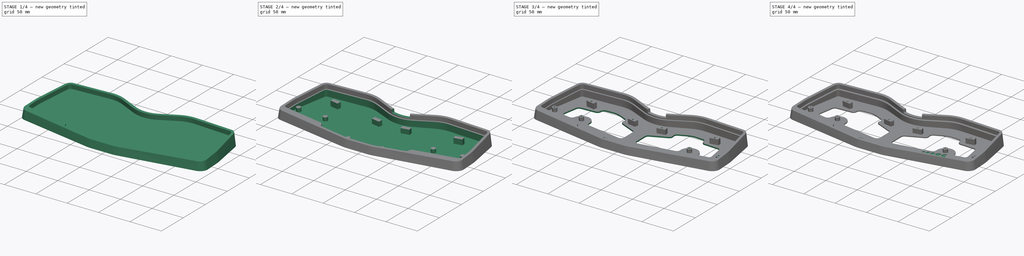
[diagram: build sequence overview — one tinted view per stage of 4, left to right]
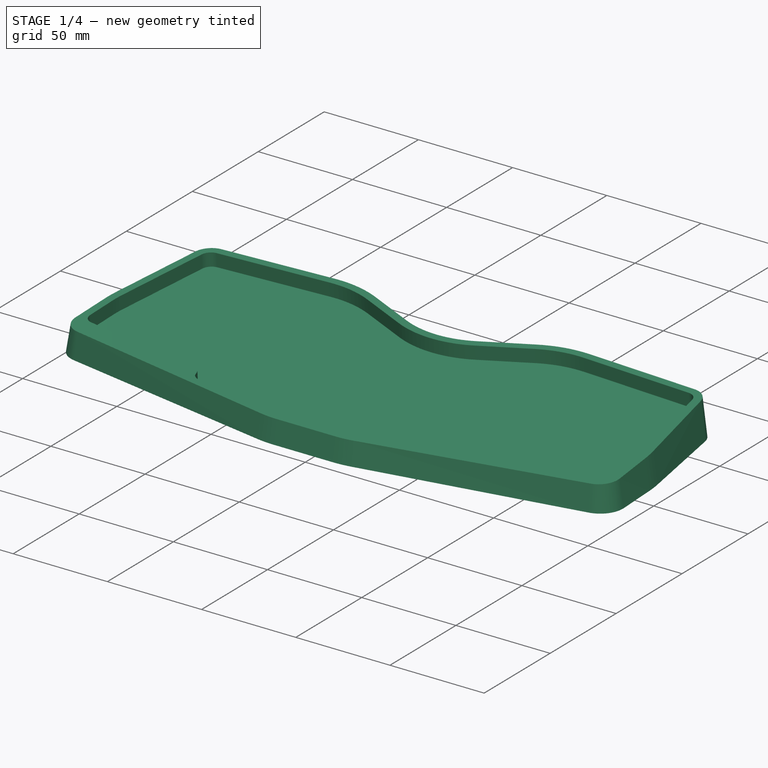
[diagram: stage 1 of 4 — iso view after this stage's code; geometry added in this stage tinted green]
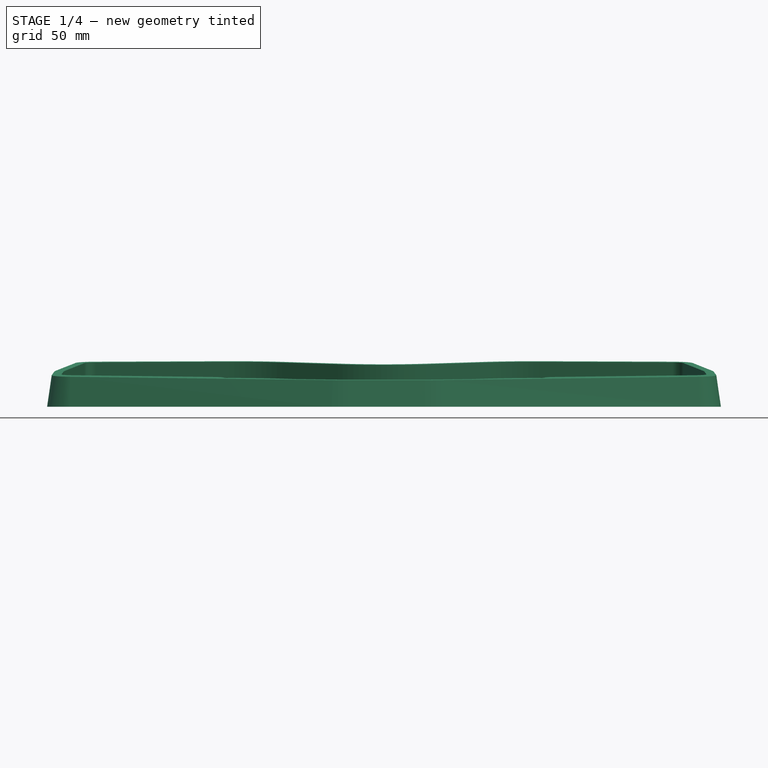
[diagram: stage 1 of 4 — front view after this stage's code; geometry added in this stage tinted green]
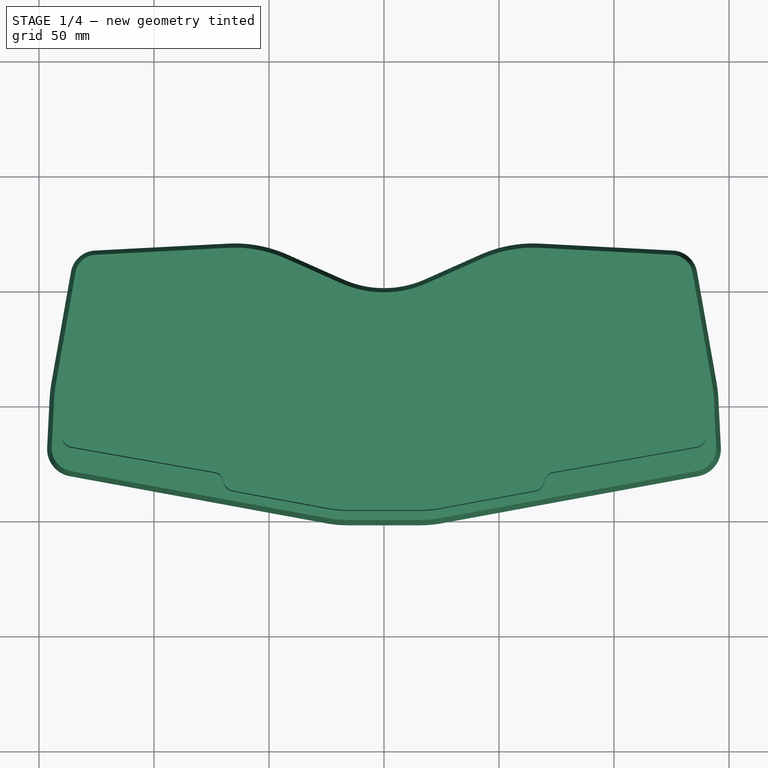
[diagram: stage 1 of 4 — top view after this stage's code; geometry added in this stage tinted green]
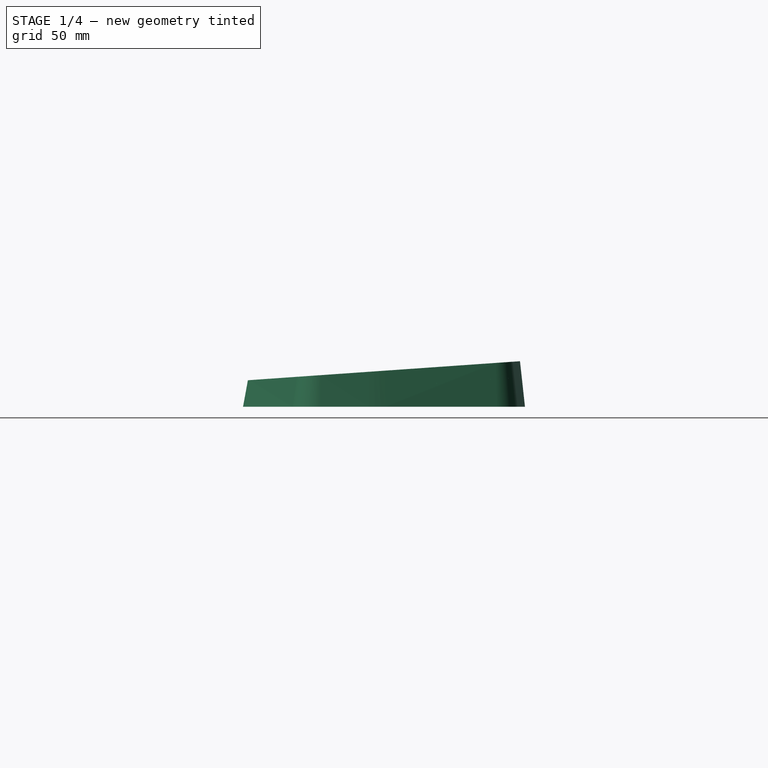
[diagram: stage 1 of 4 — right view after this stage's code; geometry added in this stage tinted green]
FCSTD DOCUMENT  (FreeCAD 0.20R)
Label: case
License: All rights reserved
LicenseURL: http://en.wikipedia.org/wiki/All_rights_reserved
objects: Sketcher::SketchObject×8, PartDesign::Pocket×5, PartDesign::AdditiveLoft×1, PartDesign::Hole×1, PartDesign::Chamfer×1, PartDesign::Fillet×1, PartDesign::Body×1
note: 27 computed .brp shape members not serialized (recipe doc carries the construction recipe); baked Part::Feature solids carry a one-line shape summary decoded from their .brp

FEATURE [Sketcher::SketchObject] Sketch001
  FullyConstrained = false
  Placement = pos=(0,0,15) rot=(1,0,0;0.069813rad)
  sketch-geometry (22):
    g0: ArcOfCircle CenterX=0 CenterY=95.3276 CenterZ=0 NormalX=0 NormalY=0 NormalZ=1 AngleXU=0 Radius=45.75 StartAngle=4.29288 EndAngle=5.1319
    g1: LineSegment StartX=18.6346 StartY=53.5447 StartZ=0 EndX=42.7869 EndY=64.3163 EndZ=0
    g2: ArcOfCircle CenterX=64.8838 CenterY=14.7704 CenterZ=0 NormalX=0 NormalY=0 NormalZ=1 AngleXU=0 Radius=54.25 StartAngle=1.51869 EndAngle=1.99031
    g3: LineSegment StartX=125.514 StartY=65.932 StartZ=0 EndX=67.7093 EndY=68.9468 EndZ=0
    g4: ArcOfCircle CenterX=125.032 CenterY=56.6946 CenterZ=0 NormalX=0 NormalY=0 NormalZ=1 AngleXU=0 Radius=9.25 StartAngle=0.174533 EndAngle=1.51869
    g5: LineSegment StartX=134.142 StartY=58.3008 StartZ=0 EndX=142.654 EndY=10.0287 EndZ=0
    g6: ArcOfCircle CenterX=89.2277 CenterY=0.608317 CenterZ=0 NormalX=0 NormalY=0 NormalZ=1 AngleXU=0 Radius=54.25 StartAngle=0.0501779 EndAngle=0.174533
    g7: LineSegment StartX=143.409 StartY=3.32933 StartZ=0 EndX=144.476 EndY=-17.8984 EndZ=0
    g8: ArcOfCircle CenterX=134.488 CenterY=-18.4 CenterZ=0 NormalX=0 NormalY=0 NormalZ=1 AngleXU=0 Radius=10 StartAngle=4.8941 EndAngle=6.33336
    g9: LineSegment StartX=136.295 StartY=-28.2354 StartZ=0 EndX=24.6177 EndY=-48.7544 EndZ=0
    g10: ArcOfCircle CenterX=15.5822 CenterY=0.422418 CenterZ=0 NormalX=0 NormalY=0 NormalZ=1 AngleXU=0 Radius=50 StartAngle=4.71239 EndAngle=4.8941
    g11: LineSegment StartX=-18.6346 StartY=53.5447 StartZ=0 EndX=-42.7869 EndY=64.3163 EndZ=0
    g12: ArcOfCircle CenterX=-64.8838 CenterY=14.7704 CenterZ=0 NormalX=0 NormalY=0 NormalZ=1 AngleXU=0 Radius=54.25 StartAngle=1.15128 EndAngle=1.6229
    g13: LineSegment StartX=-125.514 StartY=65.932 StartZ=0 EndX=-67.7093 EndY=68.9468 EndZ=0
    g14: ArcOfCircle CenterX=-125.032 CenterY=56.6946 CenterZ=0 NormalX=0 NormalY=0 NormalZ=1 AngleXU=0 Radius=9.25 StartAngle=1.6229 EndAngle=2.96706
    g15: LineSegment StartX=-134.142 StartY=58.3008 StartZ=0 EndX=-142.654 EndY=10.0287 EndZ=0
    g16: ArcOfCircle CenterX=-89.2277 CenterY=0.608317 CenterZ=0 NormalX=0 NormalY=0 NormalZ=1 AngleXU=0 Radius=54.25 StartAngle=2.96706 EndAngle=3.09141
    g17: LineSegment StartX=-143.409 StartY=3.32933 StartZ=0 EndX=-144.476 EndY=-17.8984 EndZ=0
    g18: ArcOfCircle CenterX=-134.488 CenterY=-18.4 CenterZ=0 NormalX=0 NormalY=0 NormalZ=1 AngleXU=0 Radius=10 StartAngle=3.09141 EndAngle=4.53068
    g19: LineSegment StartX=-136.295 StartY=-28.2354 StartZ=0 EndX=-24.6177 EndY=-48.7544 EndZ=0
    g20: ArcOfCircle CenterX=-15.5822 CenterY=0.422418 CenterZ=0 NormalX=0 NormalY=0 NormalZ=1 AngleXU=0 Radius=50 StartAngle=4.53068 EndAngle=4.71239
    g21: LineSegment StartX=-15.5822 StartY=-49.5776 StartZ=0 EndX=15.5822 EndY=-49.5776 EndZ=0
  constraints (22):
    c: Coincident(g17,g18)
    c: Coincident(g16,g17)
    c: Coincident(g15,g16)
    c: Coincident(g18,g19)
    c: Coincident(g14,g15)
    c: Coincident(g13,g14)
    c: Coincident(g12,g13)
    c: Coincident(g11,g12)
    c: Coincident(g19,g20)
    c: Coincident(g0,g11)
    c: Coincident(g20,g21)
    c: Coincident(g10,g21)
    c: Coincident(g0,g1)
    c: Coincident(g9,g10)
    c: Coincident(g1,g2)
    c: Coincident(g2,g3)
    c: Coincident(g3,g4)
    c: Coincident(g4,g5)
    c: Coincident(g8,g9)
    c: Coincident(g5,g6)
    c: Coincident(g6,g7)
    c: Coincident(g7,g8)
FEATURE [Sketcher::SketchObject] Sketch002
  FullyConstrained = false
  sketch-geometry (22):
    g0: ArcOfCircle CenterX=0 CenterY=95.3276 CenterZ=0 NormalX=0 NormalY=0 NormalZ=1 AngleXU=0 Radius=43.75 StartAngle=4.29288 EndAngle=5.1319
    g1: LineSegment StartX=17.82 StartY=55.3712 StartZ=0 EndX=41.9723 EndY=66.1428 EndZ=0
    g2: ArcOfCircle CenterX=64.8838 CenterY=14.7704 CenterZ=0 NormalX=0 NormalY=0 NormalZ=1 AngleXU=0 Radius=56.25 StartAngle=1.51869 EndAngle=1.99031
    g3: LineSegment StartX=125.618 StartY=67.9293 StartZ=0 EndX=67.8134 EndY=70.9441 EndZ=0
    g4: ArcOfCircle CenterX=125.032 CenterY=56.6946 CenterZ=0 NormalX=0 NormalY=0 NormalZ=1 AngleXU=0 Radius=11.25 StartAngle=0.174533 EndAngle=1.51869
    g5: LineSegment StartX=136.111 StartY=58.6481 StartZ=0 EndX=144.623 EndY=10.376 EndZ=0
    g6: ArcOfCircle CenterX=89.2277 CenterY=0.608317 CenterZ=0 NormalX=0 NormalY=0 NormalZ=1 AngleXU=0 Radius=56.25 StartAngle=0.0501779 EndAngle=0.174533
    g7: LineSegment StartX=145.407 StartY=3.42964 StartZ=0 EndX=146.473 EndY=-17.7981 EndZ=0
    g8: ArcOfCircle CenterX=134.488 CenterY=-18.4 CenterZ=0 NormalX=0 NormalY=0 NormalZ=1 AngleXU=0 Radius=12 StartAngle=4.8941 EndAngle=6.33336
    g9: LineSegment StartX=136.657 StartY=-30.2024 StartZ=0 EndX=24.9791 EndY=-50.7215 EndZ=0
    g10: ArcOfCircle CenterX=15.5822 CenterY=0.422418 CenterZ=0 NormalX=0 NormalY=0 NormalZ=1 AngleXU=0 Radius=52 StartAngle=4.71239 EndAngle=4.8941
    g11: LineSegment StartX=-17.82 StartY=55.3712 StartZ=0 EndX=-41.9723 EndY=66.1428 EndZ=0
    g12: ArcOfCircle CenterX=-64.8838 CenterY=14.7704 CenterZ=0 NormalX=0 NormalY=0 NormalZ=1 AngleXU=0 Radius=56.25 StartAngle=1.15128 EndAngle=1.6229
    g13: LineSegment StartX=-125.618 StartY=67.9293 StartZ=0 EndX=-67.8134 EndY=70.9441 EndZ=0
    g14: ArcOfCircle CenterX=-125.032 CenterY=56.6946 CenterZ=0 NormalX=0 NormalY=0 NormalZ=1 AngleXU=0 Radius=11.25 StartAngle=1.6229 EndAngle=2.96706
    g15: LineSegment StartX=-136.111 StartY=58.6481 StartZ=0 EndX=-144.623 EndY=10.376 EndZ=0
    g16: ArcOfCircle CenterX=-89.2277 CenterY=0.608317 CenterZ=0 NormalX=0 NormalY=0 NormalZ=1 AngleXU=0 Radius=56.25 StartAngle=2.96706 EndAngle=3.09141
    g17: LineSegment StartX=-145.407 StartY=3.42964 StartZ=0 EndX=-146.473 EndY=-17.7981 EndZ=0
    g18: ArcOfCircle CenterX=-134.488 CenterY=-18.4 CenterZ=0 NormalX=0 NormalY=0 NormalZ=1 AngleXU=0 Radius=12 StartAngle=3.09141 EndAngle=4.53068
    g19: LineSegment StartX=-136.657 StartY=-30.2024 StartZ=0 EndX=-24.9791 EndY=-50.7215 EndZ=0
    g20: ArcOfCircle CenterX=-15.5822 CenterY=0.422418 CenterZ=0 NormalX=0 NormalY=0 NormalZ=1 AngleXU=0 Radius=52 StartAngle=4.53068 EndAngle=4.71239
    g21: LineSegment StartX=-15.5822 StartY=-51.5776 StartZ=0 EndX=15.5822 EndY=-51.5776 EndZ=0
  constraints (22):
    c: Coincident(g17,g18)
    c: Coincident(g16,g17)
    c: Coincident(g15,g16)
    c: Coincident(g18,g19)
    c: Coincident(g14,g15)
    c: Coincident(g13,g14)
    c: Coincident(g12,g13)
    c: Coincident(g11,g12)
    c: Coincident(g19,g20)
    c: Coincident(g0,g11)
    c: Coincident(g20,g21)
    c: Coincident(g10,g21)
    c: Coincident(g0,g1)
    c: Coincident(g9,g10)
    c: Coincident(g1,g2)
    c: Coincident(g2,g3)
    c: Coincident(g3,g4)
    c: Coincident(g4,g5)
    c: Coincident(g8,g9)
    c: Coincident(g5,g6)
    c: Coincident(g6,g7)
    c: Coincident(g7,g8)
FEATURE [PartDesign::AdditiveLoft] AdditiveLoft
  Closed = true
  Profile = -> Sketch002
  Ruled = true
  Sections = -> [Sketch001]
FEATURE [Sketcher::SketchObject] Sketch
  AttachmentOffset = pos=(0,1,0) rot=(0,0,1;0rad)
  FullyConstrained = false
  MapMode = 5
  Placement = pos=(2e-16,-0.0462342,14.9968) rot=(1,0,0;0.069813rad)
  Support = -> [AdditiveLoft]
  sketch-geometry (28):
    g0: ArcOfCircle CenterX=0 CenterY=95.3276 CenterZ=0 NormalX=0 NormalY=0 NormalZ=1 AngleXU=0 Radius=49.75 StartAngle=4.29288 EndAngle=5.1319
    g1: LineSegment StartX=20.2639 StartY=49.8915 StartZ=0 EndX=44.4162 EndY=60.6631 EndZ=0
    g2: ArcOfCircle CenterX=64.8838 CenterY=14.7704 CenterZ=0 NormalX=0 NormalY=0 NormalZ=1 AngleXU=0 Radius=50.25 StartAngle=1.51869 EndAngle=1.99031
    g3: LineSegment StartX=125.306 StartY=61.9374 StartZ=0 EndX=67.5009 EndY=64.9522 EndZ=0
    g4: ArcOfCircle CenterX=125.032 CenterY=56.6946 CenterZ=0 NormalX=0 NormalY=0 NormalZ=1 AngleXU=0 Radius=5.25 StartAngle=0.174533 EndAngle=1.51869
    g5: LineSegment StartX=130.203 StartY=57.6062 StartZ=0 EndX=138.714 EndY=9.33414 EndZ=0
    g6: ArcOfCircle CenterX=89.2277 CenterY=0.608317 CenterZ=0 NormalX=0 NormalY=0 NormalZ=1 AngleXU=0 Radius=50.25 StartAngle=0.0501779 EndAngle=0.174533
    g7: LineSegment StartX=139.414 StartY=3.1287 StartZ=0 EndX=140.207 EndY=-12.6499 EndZ=0
    g8: ArcOfCircle CenterX=134.963 CenterY=-12.9132 CenterZ=0 NormalX=0 NormalY=0 NormalZ=1 AngleXU=0 Radius=5.25 StartAngle=4.88692 EndAngle=6.33336
    g9: LineSegment StartX=135.875 StartY=-18.0835 StartZ=0 EndX=73.6679 EndY=-29.0523 EndZ=0
    g10: ArcOfCircle CenterX=74.4927 CenterY=-33.7301 CenterZ=0 NormalX=0 NormalY=0 NormalZ=1 AngleXU=0 Radius=4.75 StartAngle=1.74533 EndAngle=2.96723
    g11: ArcOfCircle CenterX=64.6443 CenterY=-31.9953 CenterZ=0 NormalX=0 NormalY=0 NormalZ=1 AngleXU=0 Radius=5.25 StartAngle=4.8941 EndAngle=6.10882
    g12: LineSegment StartX=65.593 StartY=-37.1588 StartZ=0 EndX=24.2757 EndY=-44.7503 EndZ=0
    g13: ArcOfCircle CenterX=15.195 CenterY=4.67242 CenterZ=0 NormalX=0 NormalY=0 NormalZ=1 AngleXU=0 Radius=50.25 StartAngle=4.71239 EndAngle=4.8941
    g14: LineSegment StartX=-15.195 StartY=-45.5776 StartZ=0 EndX=15.195 EndY=-45.5776 EndZ=0
    g15: LineSegment StartX=-65.593 StartY=-37.1588 StartZ=0 EndX=-24.2757 EndY=-44.7503 EndZ=0
    g16: ArcOfCircle CenterX=-15.195 CenterY=4.67242 CenterZ=0 NormalX=0 NormalY=0 NormalZ=1 AngleXU=0 Radius=50.25 StartAngle=4.53068 EndAngle=4.71239
    g17: ArcOfCircle CenterX=-64.6443 CenterY=-31.9953 CenterZ=0 NormalX=0 NormalY=0 NormalZ=1 AngleXU=0 Radius=5.25 StartAngle=3.31596 EndAngle=4.53068
    g18: ArcOfCircle CenterX=-74.4927 CenterY=-33.7301 CenterZ=0 NormalX=0 NormalY=0 NormalZ=1 AngleXU=0 Radius=4.75 StartAngle=0.174368 EndAngle=1.39626
    g19: LineSegment StartX=-135.875 StartY=-18.0835 StartZ=0 EndX=-73.6679 EndY=-29.0523 EndZ=0
    g20: ArcOfCircle CenterX=-134.963 CenterY=-12.9132 CenterZ=0 NormalX=0 NormalY=0 NormalZ=1 AngleXU=0 Radius=5.25 StartAngle=3.09141 EndAngle=4.53786
    g21: LineSegment StartX=-139.414 StartY=3.1287 StartZ=0 EndX=-140.207 EndY=-12.6499 EndZ=0
    g22: ArcOfCircle CenterX=-89.2277 CenterY=0.608317 CenterZ=0 NormalX=0 NormalY=0 NormalZ=1 AngleXU=0 Radius=50.25 StartAngle=2.96706 EndAngle=3.09141
    g23: LineSegment StartX=-130.203 StartY=57.6062 StartZ=0 EndX=-138.714 EndY=9.33414 EndZ=0
    g24: ArcOfCircle CenterX=-125.032 CenterY=56.6946 CenterZ=0 NormalX=0 NormalY=0 NormalZ=1 AngleXU=0 Radius=5.25 StartAngle=1.6229 EndAngle=2.96706
    g25: LineSegment StartX=-125.306 StartY=61.9374 StartZ=0 EndX=-67.5009 EndY=64.9522 EndZ=0
    g26: ArcOfCircle CenterX=-64.8838 CenterY=14.7704 CenterZ=0 NormalX=0 NormalY=0 NormalZ=1 AngleXU=0 Radius=50.25 StartAngle=1.15128 EndAngle=1.6229
    g27: LineSegment StartX=-20.2639 StartY=49.8915 StartZ=0 EndX=-44.4162 EndY=60.6631 EndZ=0
  constraints (28):
    c: Coincident(g20,g21)
    c: Coincident(g21,g22)
    c: Coincident(g22,g23)
    c: Coincident(g19,g20)
    c: Coincident(g23,g24)
    c: Coincident(g24,g25)
    c: Coincident(g18,g19)
    c: Coincident(g17,g18)
    c: Coincident(g25,g26)
    c: Coincident(g15,g17)
    c: Coincident(g26,g27)
    c: Coincident(g15,g16)
    c: Coincident(g0,g27)
    c: Coincident(g14,g16)
    c: Coincident(g13,g14)
    c: Coincident(g0,g1)
    c: Coincident(g12,g13)
    c: Coincident(g1,g2)
    c: Coincident(g11,g12)
    c: Coincident(g2,g3)
    c: Coincident(g10,g11)
    c: Coincident(g9,g10)
    c: Coincident(g3,g4)
    c: Coincident(g4,g5)
    c: Coincident(g8,g9)
    c: Coincident(g5,g6)
    c: Coincident(g6,g7)
    c: Coincident(g7,g8)
FEATURE [PartDesign::Pocket] Pocket
  BaseFeature = -> AdditiveLoft
  Direction = (0,0.0697565,-0.997564)
  Length = 7
  Length2 = 5
  Offset = -2
  Profile = -> Sketch
  ReferenceAxis = -> Sketch [N_Axis]
  Type = 0
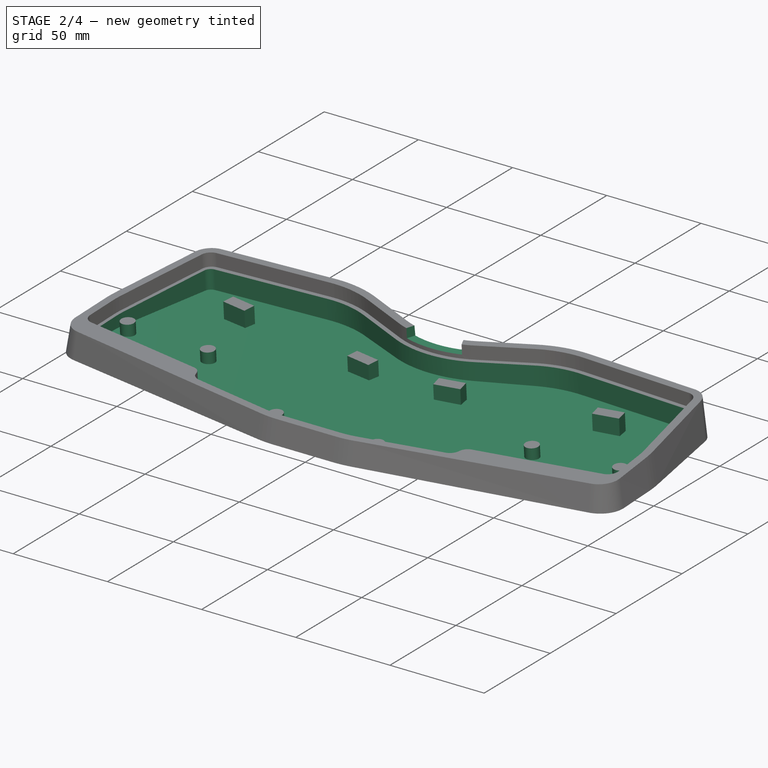
[diagram: stage 2 of 4 — iso view after this stage's code; geometry added in this stage tinted green]
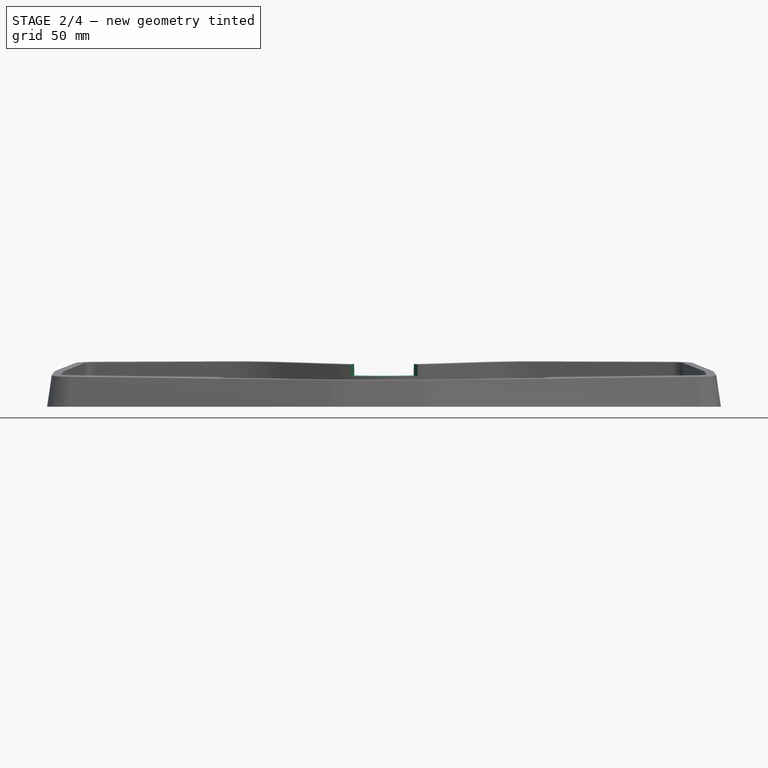
[diagram: stage 2 of 4 — front view after this stage's code; geometry added in this stage tinted green]
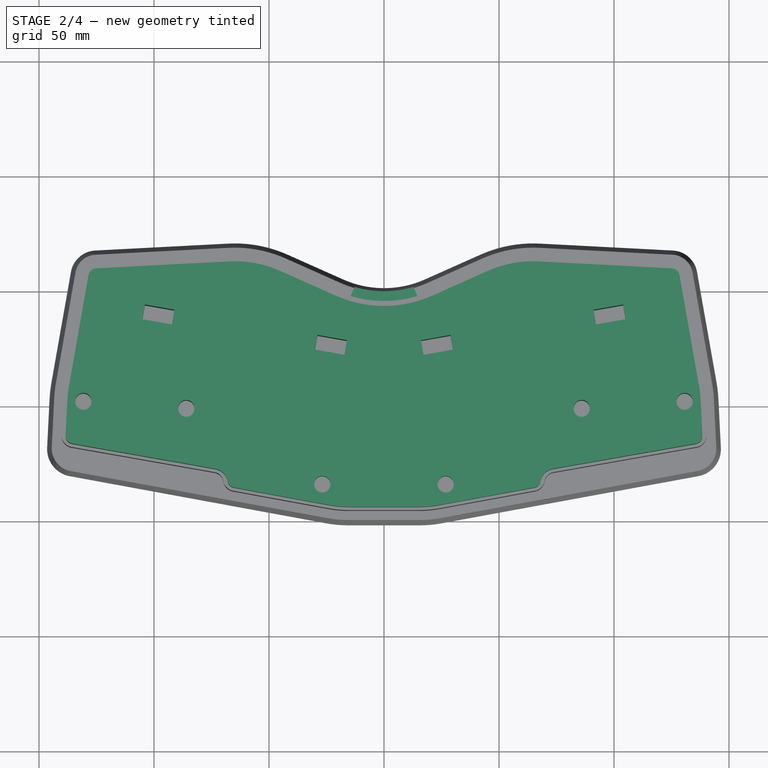
[diagram: stage 2 of 4 — top view after this stage's code; geometry added in this stage tinted green]
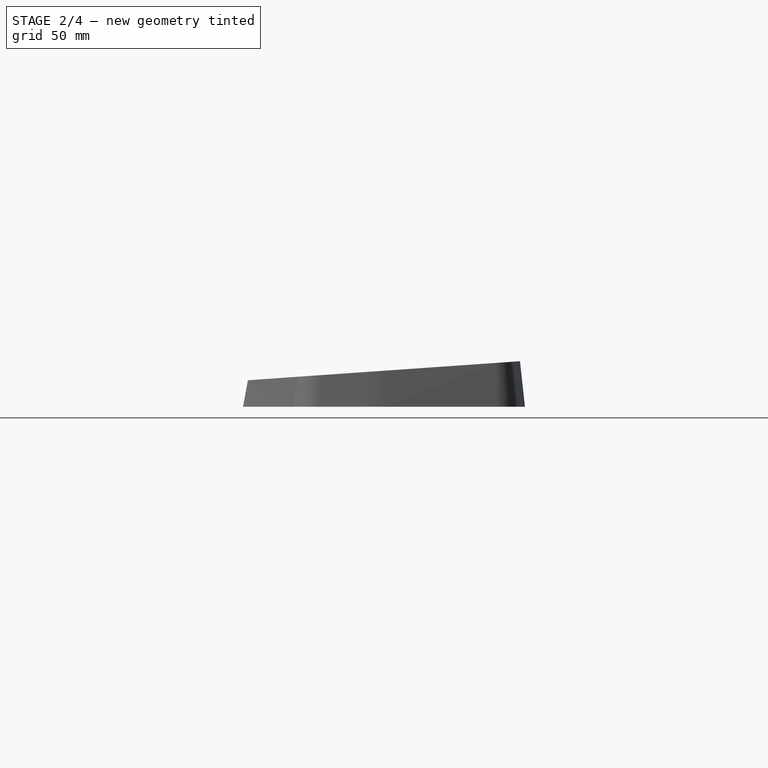
[diagram: stage 2 of 4 — right view after this stage's code; geometry added in this stage tinted green]
FEATURE [Sketcher::SketchObject] Sketch003
  AttachmentOffset = pos=(0,0.5,0) rot=(0,0,1;0rad)
  FullyConstrained = false
  MapMode = 5
  Placement = pos=(1e-16,-0.0567209,7.97894) rot=(1,0,0;0.069813rad)
  Support = -> [Pocket]
  sketch-geometry (50):
    g0: Circle CenterX=26.8409 CenterY=-33.9213 CenterZ=0 NormalX=0 NormalY=0 NormalZ=-1 AngleXU=0 Radius=3.5
    g1: Circle CenterX=85.9654 CenterY=-0.952441 CenterZ=0 NormalX=0 NormalY=0 NormalZ=-1 AngleXU=0 Radius=3.5
    g2: Circle CenterX=130.715 CenterY=2.10212 CenterZ=0 NormalX=0 NormalY=0 NormalZ=-1 AngleXU=0 Radius=3.5
    g3: Circle CenterX=-85.9654 CenterY=-0.952441 CenterZ=0 NormalX=0 NormalY=0 NormalZ=-1 AngleXU=0 Radius=3.5
    g4: Circle CenterX=-130.715 CenterY=2.10212 CenterZ=0 NormalX=0 NormalY=0 NormalZ=-1 AngleXU=0 Radius=3.5
    g5: Circle CenterX=-26.8409 CenterY=-33.9213 CenterZ=0 NormalX=0 NormalY=0 NormalZ=-1 AngleXU=0 Radius=3.5
    g6: LineSegment StartX=-28.9437 StartY=30.7525 StartZ=0 EndX=-16.1412 EndY=28.4951 EndZ=0
    g7: LineSegment StartX=-16.1412 StartY=28.4951 StartZ=0 EndX=-17.1917 EndY=22.537 EndZ=0
    g8: LineSegment StartX=-17.1917 StartY=22.537 StartZ=0 EndX=-29.9942 EndY=24.7944 EndZ=0
    g9: LineSegment StartX=-29.9942 StartY=24.7944 StartZ=0 EndX=-28.9437 EndY=30.7525 EndZ=0
    g10: LineSegment StartX=-103.986 StartY=43.9845 StartZ=0 EndX=-91.1835 EndY=41.7271 EndZ=0
    g11: LineSegment StartX=-91.1835 StartY=41.7271 StartZ=0 EndX=-92.2341 EndY=35.769 EndZ=0
    g12: LineSegment StartX=-92.2341 StartY=35.769 StartZ=0 EndX=-105.037 EndY=38.0264 EndZ=0
    g13: LineSegment StartX=-105.037 StartY=38.0264 StartZ=0 EndX=-103.986 EndY=43.9845 EndZ=0
    g14: LineSegment StartX=28.9437 StartY=30.7525 StartZ=0 EndX=16.1412 EndY=28.4951 EndZ=0
    g15: LineSegment StartX=16.1412 StartY=28.4951 StartZ=0 EndX=17.1917 EndY=22.537 EndZ=0
    g16: LineSegment StartX=17.1917 StartY=22.537 StartZ=0 EndX=29.9942 EndY=24.7944 EndZ=0
    g17: LineSegment StartX=29.9942 StartY=24.7944 StartZ=0 EndX=28.9437 EndY=30.7525 EndZ=0
    g18: LineSegment StartX=103.986 StartY=43.9845 StartZ=0 EndX=91.1835 EndY=41.7271 EndZ=0
    g19: LineSegment StartX=91.1835 StartY=41.7271 StartZ=0 EndX=92.2341 EndY=35.769 EndZ=0
    g20: LineSegment StartX=92.2341 StartY=35.769 StartZ=0 EndX=105.037 EndY=38.0264 EndZ=0
    g21: LineSegment StartX=105.037 StartY=38.0264 StartZ=0 EndX=103.986 EndY=43.9845 EndZ=0
    g22: ArcOfCircle CenterX=-125.032 CenterY=56.6946 CenterZ=0 NormalX=0 NormalY=0 NormalZ=1 AngleXU=0 Radius=3.5 StartAngle=1.6229 EndAngle=2.96706
    g23: LineSegment StartX=-125.215 StartY=60.1898 StartZ=0 EndX=-67.4098 EndY=63.2046 EndZ=0
    g24: LineSegment StartX=-128.479 StartY=57.3023 StartZ=0 EndX=-136.991 EndY=9.03025 EndZ=0
    g25: ArcOfCircle CenterX=-89.2277 CenterY=0.608317 CenterZ=0 NormalX=0 NormalY=0 NormalZ=1 AngleXU=0 Radius=48.5 StartAngle=2.96706 EndAngle=3.09141
    g26: LineSegment StartX=-137.667 StartY=3.04093 StartZ=0 EndX=-138.459 EndY=-12.7377 EndZ=0
    g27: ArcOfCircle CenterX=-134.963 CenterY=-12.9132 CenterZ=0 NormalX=0 NormalY=0 NormalZ=1 AngleXU=0 Radius=3.5 StartAngle=3.09141 EndAngle=4.53786
    g28: LineSegment StartX=-135.571 StartY=-16.3601 StartZ=0 EndX=-73.364 EndY=-27.3289 EndZ=0
    g29: ArcOfCircle CenterX=-74.4927 CenterY=-33.7301 CenterZ=0 NormalX=0 NormalY=0 NormalZ=1 AngleXU=0 Radius=6.5 StartAngle=0.174368 EndAngle=1.39626
    g30: ArcOfCircle CenterX=-64.6443 CenterY=-31.9953 CenterZ=0 NormalX=0 NormalY=0 NormalZ=1 AngleXU=0 Radius=3.5 StartAngle=3.31596 EndAngle=4.53068
    g31: LineSegment StartX=-65.2768 StartY=-35.4377 StartZ=0 EndX=-23.9594 EndY=-43.0291 EndZ=0
    g32: ArcOfCircle CenterX=-15.195 CenterY=4.67242 CenterZ=0 NormalX=0 NormalY=0 NormalZ=1 AngleXU=0 Radius=48.5 StartAngle=4.53068 EndAngle=4.71239
    g33: LineSegment StartX=-15.195 StartY=-43.8276 StartZ=0 EndX=15.195 EndY=-43.8276 EndZ=0
    g34: ArcOfCircle CenterX=15.195 CenterY=4.67242 CenterZ=0 NormalX=0 NormalY=0 NormalZ=1 AngleXU=0 Radius=48.5 StartAngle=4.71239 EndAngle=4.8941
    g35: LineSegment StartX=65.2768 StartY=-35.4377 StartZ=0 EndX=23.9594 EndY=-43.0291 EndZ=0
    g36: ArcOfCircle CenterX=64.6443 CenterY=-31.9953 CenterZ=0 NormalX=0 NormalY=0 NormalZ=1 AngleXU=0 Radius=3.5 StartAngle=4.8941 EndAngle=6.10882
    g37: ArcOfCircle CenterX=74.4927 CenterY=-33.7301 CenterZ=0 NormalX=0 NormalY=0 NormalZ=1 AngleXU=0 Radius=6.5 StartAngle=1.74533 EndAngle=2.96723
    g38: LineSegment StartX=135.571 StartY=-16.3601 StartZ=0 EndX=73.364 EndY=-27.3289 EndZ=0
    g39: ArcOfCircle CenterX=134.963 CenterY=-12.9132 CenterZ=0 NormalX=0 NormalY=0 NormalZ=1 AngleXU=0 Radius=3.5 StartAngle=4.88692 EndAngle=6.33336
    g40: LineSegment StartX=137.667 StartY=3.04093 StartZ=0 EndX=138.459 EndY=-12.7377 EndZ=0
    g41: ArcOfCircle CenterX=89.2277 CenterY=0.608317 CenterZ=0 NormalX=0 NormalY=0 NormalZ=1 AngleXU=0 Radius=48.5 StartAngle=0.0501779 EndAngle=0.174533
    g42: LineSegment StartX=128.479 StartY=57.3023 StartZ=0 EndX=136.991 EndY=9.03025 EndZ=0
    g43: ArcOfCircle CenterX=125.032 CenterY=56.6946 CenterZ=0 NormalX=0 NormalY=0 NormalZ=1 AngleXU=0 Radius=3.5 StartAngle=0.174533 EndAngle=1.51869
    g44: LineSegment StartX=125.215 StartY=60.1898 StartZ=0 EndX=67.4098 EndY=63.2046 EndZ=0
    g45: ArcOfCircle CenterX=64.8838 CenterY=14.7704 CenterZ=0 NormalX=0 NormalY=0 NormalZ=1 AngleXU=0 Radius=48.5 StartAngle=1.51869 EndAngle=1.99031
    g46: LineSegment StartX=20.9767 StartY=48.2933 StartZ=0 EndX=45.129 EndY=59.0649 EndZ=0
    g47: ArcOfCircle CenterX=-3.6e-15 CenterY=95.3276 CenterZ=0 NormalX=0 NormalY=0 NormalZ=1 AngleXU=0 Radius=51.5 StartAngle=4.29288 EndAngle=5.1319
    g48: LineSegment StartX=-20.9767 StartY=48.2933 StartZ=0 EndX=-45.129 EndY=59.0649 EndZ=0
    g49: ArcOfCircle CenterX=-64.8838 CenterY=14.7704 CenterZ=0 NormalX=0 NormalY=0 NormalZ=1 AngleXU=0 Radius=48.5 StartAngle=1.15128 EndAngle=1.6229
  constraints (44):
    c: Coincident(g26,g27)
    c: Coincident(g25,g26)
    c: Coincident(g24,g25)
    c: Coincident(g27,g28)
    c: Coincident(g22,g24)
    c: Coincident(g22,g23)
    c: Coincident(g12,g13)
    c: Coincident(g10,g13)
    c: Coincident(g11,g12)
    c: Coincident(g10,g11)
    c: Coincident(g28,g29)
    c: Coincident(g29,g30)
    c: Coincident(g23,g49)
    c: Coincident(g30,g31)
    c: Coincident(g48,g49)
    c: Coincident(g8,g9)
    c: Coincident(g6,g9)
    c: Coincident(g31,g32)
    c: Coincident(g47,g48)
    c: Coincident(g7,g8)
    c: Coincident(g6,g7)
    c: Coincident(g32,g33)
    c: Coincident(g33,g34)
    c: Coincident(g14,g15)
    c: Coincident(g15,g16)
    c: Coincident(g46,g47)
    c: Coincident(g34,g35)
    c: Coincident(g14,g17)
    c: Coincident(g16,g17)
    c: Coincident(g45,g46)
    c: Coincident(g35,g36)
    c: Coincident(g44,g45)
    c: Coincident(g36,g37)
    c: Coincident(g37,g38)
    c: Coincident(g18,g19)
    c: Coincident(g19,g20)
    c: Coincident(g18,g21)
    c: Coincident(g20,g21)
    c: Coincident(g43,g44)
    c: Coincident(g42,g43)
    c: Coincident(g38,g39)
    c: Coincident(g41,g42)
    c: Coincident(g40,g41)
    c: Coincident(g39,g40)
FEATURE [PartDesign::Pocket] Pocket001
  BaseFeature = -> Pocket
  Direction = (0,0.0697565,-0.997564)
  Length = 0
  Length2 = 5
  Offset = -2
  Profile = -> Sketch003
  ReferenceAxis = -> Sketch003 [N_Axis]
  Type = 3
  UpToFace = -> Pocket [Face1]
FEATURE [Sketcher::SketchObject] Sketch004
  ExternalGeometry = -> [Pocket001]
  FullyConstrained = true
  MapMode = 5
  Placement = pos=(2e-16,-1.0438,14.927) rot=(1,0,0;0.069813rad)
  Support = -> [Pocket001]
  sketch-geometry (6):
    g0: LineSegment StartX=18.6346 StartY=54.591 StartZ=0 EndX=20.2639 EndY=50.8915 EndZ=0
    g1: LineSegment StartX=-18.6346 StartY=54.591 StartZ=0 EndX=-20.2639 EndY=50.8915 EndZ=0
    g2: LineSegment StartX=-15.9098 StartY=45.8915 StartZ=0 EndX=-9.87655 EndY=59.591 EndZ=0
    g3: LineSegment StartX=-9.87655 StartY=59.591 StartZ=0 EndX=9.87655 EndY=59.591 EndZ=0
    g4: LineSegment StartX=9.87655 StartY=59.591 StartZ=0 EndX=15.9098 EndY=45.8915 EndZ=0
    g5: LineSegment StartX=15.9098 StartY=45.8915 StartZ=0 EndX=-15.9098 EndY=45.8915 EndZ=0
  constraints (16):
    c: Coincident(g0,g-4)
    c: Coincident(g0,g-3)
    c: Coincident(g1,g-4)
    c: Coincident(g1,g-3)
    c: Coincident(g2,g3)
    c: Horizontal(g3)
    c: Coincident(g3,g4)
    c: Coincident(g4,g5)
    c: Coincident(g5,g2)
    c: Horizontal(g5)
    c: Distance(g1,g2) = 6
    c: Parallel(g2,g1)
    c: Parallel(g4,g0)
    c: Distance(g0,g4) = 6
    c: DistanceY(g1,g2) = 5
    c: DistanceY(g2,g1) = 5
FEATURE [PartDesign::Pocket] Pocket002
  BaseFeature = -> Pocket001
  Direction = (0,0.0697565,-0.997564)
  Length = 0
  Length2 = 5
  Offset = -2
  Profile = -> Sketch004
  ReferenceAxis = -> Sketch004 [N_Axis]
  Type = 3
  UpToFace = -> Pocket001 [Face53]
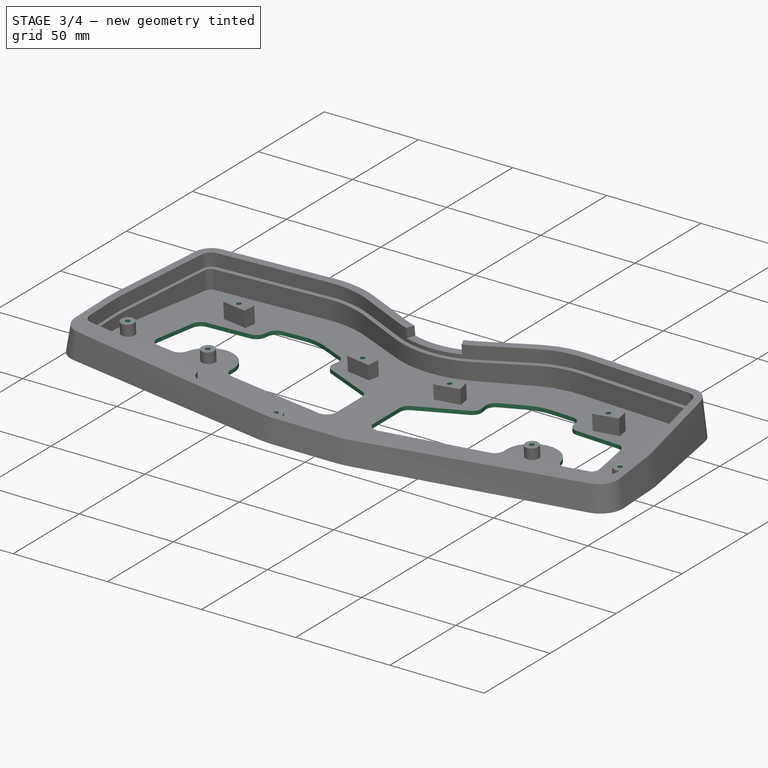
[diagram: stage 3 of 4 — iso view after this stage's code; geometry added in this stage tinted green]
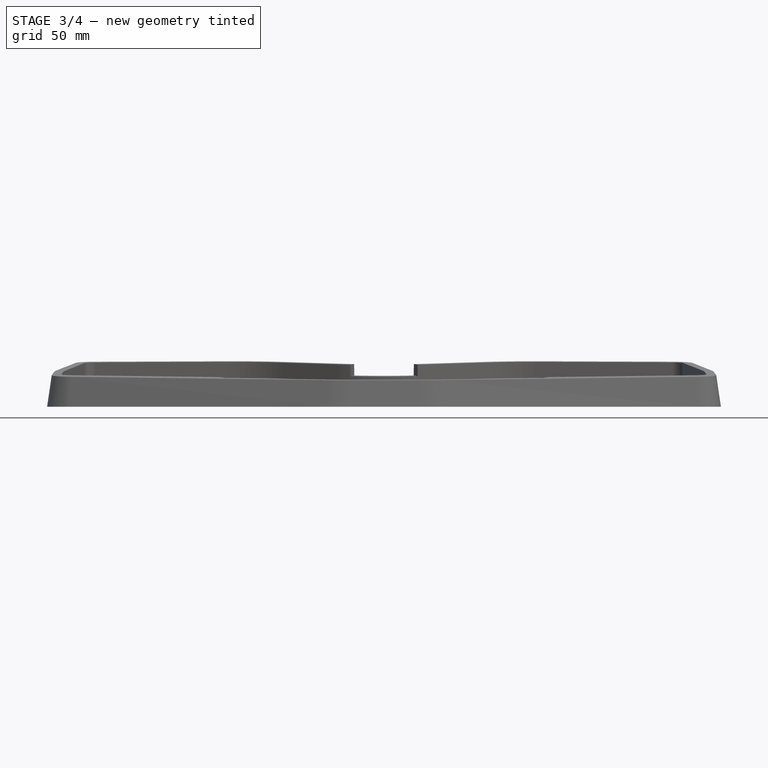
[diagram: stage 3 of 4 — front view after this stage's code; geometry added in this stage tinted green]
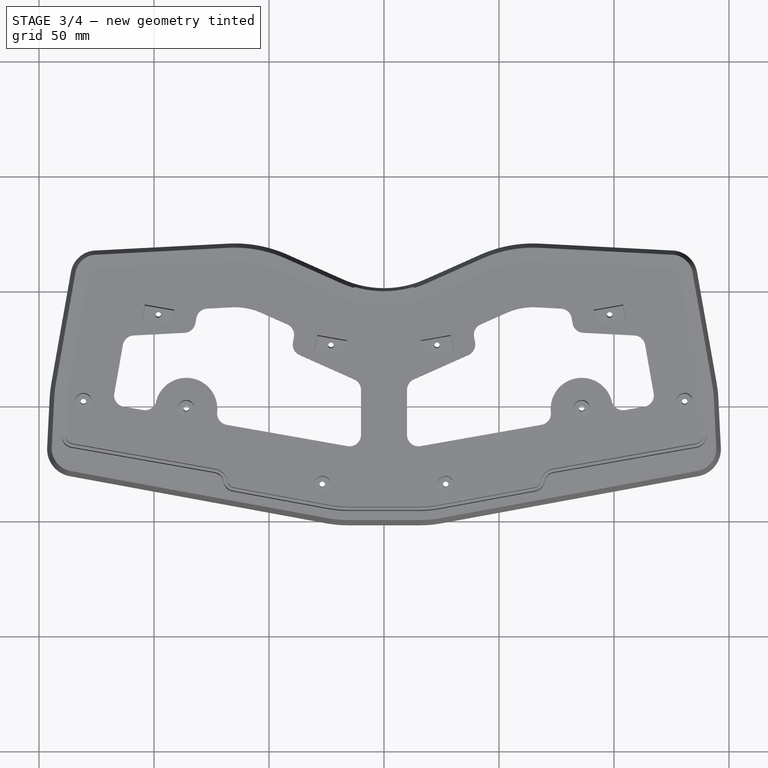
[diagram: stage 3 of 4 — top view after this stage's code; geometry added in this stage tinted green]
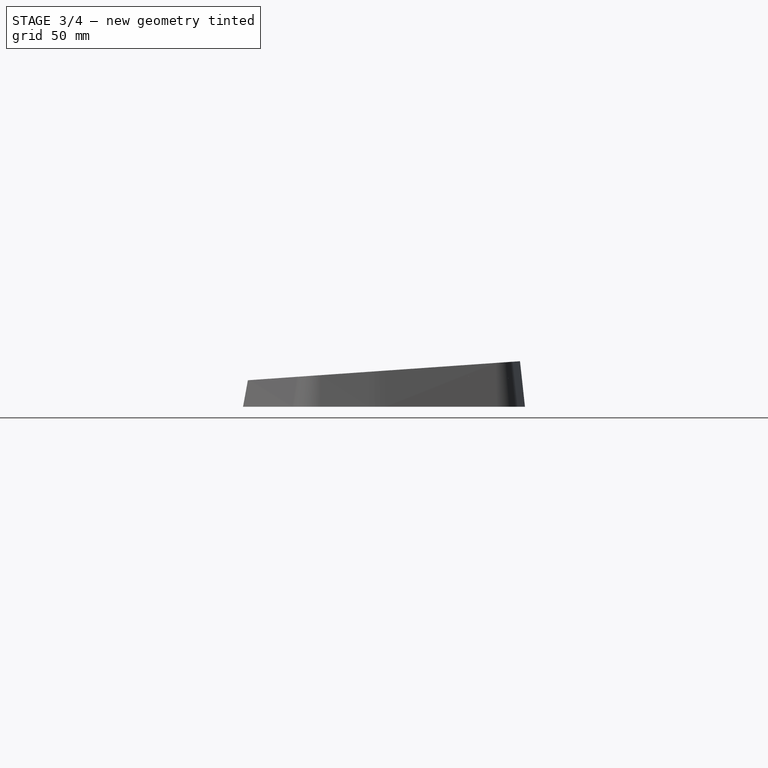
[diagram: stage 3 of 4 — right view after this stage's code; geometry added in this stage tinted green]
FEATURE [Sketcher::SketchObject] Sketch005
  FullyConstrained = false
  MapMode = 5
  Placement = pos=(1e-16,-0.555503,7.94406) rot=(1,0,0;0.069813rad)
  Support = -> [Pocket002]
  sketch-geometry (10):
    g0: Circle CenterX=-98.11 CenterY=40.3767 CenterZ=0 NormalX=0 NormalY=0 NormalZ=1 AngleXU=0 Radius=1
    g1: Circle CenterX=-23.0677 CenterY=27.1447 CenterZ=0 NormalX=0 NormalY=0 NormalZ=1 AngleXU=0 Radius=1
    g2: Circle CenterX=23.0677 CenterY=27.1447 CenterZ=0 NormalX=0 NormalY=0 NormalZ=1 AngleXU=0 Radius=1
    g3: Circle CenterX=98.11 CenterY=40.3767 CenterZ=0 NormalX=0 NormalY=0 NormalZ=1 AngleXU=0 Radius=1
    g4: Circle CenterX=130.715 CenterY=2.60212 CenterZ=0 NormalX=0 NormalY=0 NormalZ=1 AngleXU=0 Radius=1
    g5: Circle CenterX=85.9654 CenterY=-0.452441 CenterZ=0 NormalX=0 NormalY=0 NormalZ=1 AngleXU=0 Radius=1
    g6: Circle CenterX=26.8409 CenterY=-33.4213 CenterZ=0 NormalX=0 NormalY=0 NormalZ=1 AngleXU=0 Radius=1
    g7: Circle CenterX=-26.8409 CenterY=-33.4213 CenterZ=0 NormalX=0 NormalY=0 NormalZ=1 AngleXU=0 Radius=1
    g8: Circle CenterX=-85.9654 CenterY=-0.452441 CenterZ=0 NormalX=0 NormalY=0 NormalZ=1 AngleXU=0 Radius=1
    g9: Circle CenterX=-130.715 CenterY=2.60212 CenterZ=0 NormalX=0 NormalY=0 NormalZ=1 AngleXU=0 Radius=1
  constraints (10):
    c: Equal(g9,g0)
    c: Equal(g0,g8)
    c: Equal(g8,g1)
    c: Equal(g1,g2)
    c: Equal(g2,g3)
    c: Equal(g3,g4)
    c: Equal(g4,g5)
    c: Equal(g5,g6)
    c: Equal(g6,g7)
    c: Diameter(g0) = 2
FEATURE [PartDesign::Hole] Hole
  BaseFeature = -> Pocket002
  CustomThreadClearance = 0
  Depth = 642.669
  DepthType = 1
  Diameter = 2.42
  DrillForDepth = false
  DrillPoint = 1
  DrillPointAngle = 118
  HoleCutCountersinkAngle = 90
  HoleCutCustomValues = false
  HoleCutDepth = 0
  HoleCutDiameter = 6.1
  HoleCutType = 0
  ModelThread = false
  Profile = -> Sketch005
  Tapered = false
  TaperedAngle = 90
  ThreadClass = 0
  ThreadDepth = 642.669
  ThreadDepthType = 0
  ThreadDirection = 0
  ThreadFit = 0
  ThreadSize = 7
  ThreadType = 1
  Threaded = false
  UseCustomThreadClearance = false
FEATURE [Sketcher::SketchObject] Sketch006
  FullyConstrained = false
  MapMode = 5
  Placement = pos=(0,0,1.99513) rot=(0,0,1;0rad)
  Support = -> [Hole]
  sketch-geometry (44):
    g0: ArcOfCircle CenterX=-64.8838 CenterY=14.7704 CenterZ=0 NormalX=0 NormalY=0 NormalZ=1 AngleXU=0 Radius=28.5 StartAngle=1.15128 EndAngle=1.6229
    g1: ArcOfCircle CenterX=-103.935 CenterY=3.44722 CenterZ=0 NormalX=0 NormalY=0 NormalZ=1 AngleXU=0 Radius=5 StartAngle=4.53786 EndAngle=6.04306
    g2: ArcOfCircle CenterX=-67.5751 CenterY=-2.96395 CenterZ=0 NormalX=0 NormalY=0 NormalZ=1 AngleXU=0 Radius=5 StartAngle=3.03265 EndAngle=4.53786
    g3: LineSegment StartX=-15.8682 StartY=-17.1584 StartZ=0 EndX=-68.4434 EndY=-7.88798 EndZ=0
    g4: ArcOfCircle CenterX=-15 CenterY=-12.2344 CenterZ=0 NormalX=0 NormalY=0 NormalZ=1 AngleXU=0 Radius=5 StartAngle=4.53786 EndAngle=6.28319
    g5: LineSegment StartX=-10 StartY=7.30465 StartZ=0 EndX=-10 EndY=-12.2344 EndZ=0
    g6: ArcOfCircle CenterX=-15 CenterY=7.30465 CenterZ=0 NormalX=0 NormalY=0 NormalZ=1 AngleXU=0 Radius=5 StartAngle=0 EndAngle=1.15128
    g7: LineSegment StartX=-113.197 StartY=0.00327875 StartZ=0 EndX=-104.803 EndY=-1.47682 EndZ=0
    g8: ArcOfCircle CenterX=-112.329 CenterY=4.92732 CenterZ=0 NormalX=0 NormalY=0 NormalZ=1 AngleXU=0 Radius=5 StartAngle=2.96706 EndAngle=4.53786
    g9: LineSegment StartX=-113.536 StartY=26.8764 StartZ=0 EndX=-117.253 EndY=5.79556 EndZ=0
    g10: ArcOfCircle CenterX=-108.612 CenterY=26.0082 CenterZ=0 NormalX=0 NormalY=0 NormalZ=1 AngleXU=0 Radius=5 StartAngle=1.6229 EndAngle=2.96706
    g11: LineSegment StartX=-108.872 StartY=31.0014 StartZ=0 EndX=-86.6524 EndY=32.1602 EndZ=0
    g12: ArcOfCircle CenterX=-86.9128 CenterY=37.1534 CenterZ=0 NormalX=0 NormalY=0 NormalZ=1 AngleXU=0 Radius=5 StartAngle=4.7645 EndAngle=6.10865
    g13: LineSegment StartX=-81.5883 StartY=38.5562 StartZ=0 EndX=-81.9888 EndY=36.2852 EndZ=0
    g14: LineSegment StartX=-76.9247 StartY=42.6811 StartZ=0 EndX=-66.3681 EndY=43.2317 EndZ=0
    g15: ArcOfCircle CenterX=-76.6643 CenterY=37.6879 CenterZ=0 NormalX=0 NormalY=0 NormalZ=1 AngleXU=0 Radius=5 StartAngle=1.6229 EndAngle=2.96706
    g16: LineSegment StartX=-53.2753 StartY=40.7991 StartZ=0 EndX=-42.0546 EndY=35.7948 EndZ=0
    g17: ArcOfCircle CenterX=-44.0911 CenterY=31.2284 CenterZ=0 NormalX=0 NormalY=0 NormalZ=1 AngleXU=0 Radius=5 StartAngle=6.10865 EndAngle=7.43447
    g18: LineSegment StartX=-39.6012 StartY=27.8981 StartZ=0 EndX=-39.1671 EndY=30.3601 EndZ=0
    g19: LineSegment StartX=-36.7138 StartY=22.4634 StartZ=0 EndX=-12.9634 EndY=11.8711 EndZ=0
    g20: ArcOfCircle CenterX=-34.6772 CenterY=27.0299 CenterZ=0 NormalX=0 NormalY=0 NormalZ=1 AngleXU=0 Radius=5 StartAngle=2.96706 EndAngle=4.29288
    g21: ArcOfCircle CenterX=-85.9654 CenterY=-0.952441 CenterZ=0 NormalX=0 NormalY=0 NormalZ=1 AngleXU=0 Radius=13.5 StartAngle=6.17424 EndAngle=9.18466
    g22: ArcOfCircle CenterX=64.8838 CenterY=14.7704 CenterZ=0 NormalX=0 NormalY=0 NormalZ=1 AngleXU=0 Radius=28.5 StartAngle=1.51869 EndAngle=1.99031
    g23: ArcOfCircle CenterX=103.935 CenterY=3.44722 CenterZ=0 NormalX=0 NormalY=0 NormalZ=1 AngleXU=0 Radius=5 StartAngle=3.38171 EndAngle=4.88692
    g24: ArcOfCircle CenterX=67.5751 CenterY=-2.96395 CenterZ=0 NormalX=0 NormalY=0 NormalZ=1 AngleXU=0 Radius=5 StartAngle=4.88692 EndAngle=6.39213
    g25: LineSegment StartX=15.8682 StartY=-17.1584 StartZ=0 EndX=68.4434 EndY=-7.88798 EndZ=0
    g26: ArcOfCircle CenterX=15 CenterY=-12.2344 CenterZ=0 NormalX=0 NormalY=0 NormalZ=1 AngleXU=0 Radius=5 StartAngle=3.14159 EndAngle=4.88692
    g27: LineSegment StartX=10 StartY=7.30465 StartZ=0 EndX=10 EndY=-12.2344 EndZ=0
    g28: ArcOfCircle CenterX=15 CenterY=7.30465 CenterZ=0 NormalX=0 NormalY=0 NormalZ=1 AngleXU=0 Radius=5 StartAngle=1.99031 EndAngle=3.14159
    g29: LineSegment StartX=113.197 StartY=0.00327875 StartZ=0 EndX=104.803 EndY=-1.47682 EndZ=0
    g30: ArcOfCircle CenterX=112.329 CenterY=4.92732 CenterZ=0 NormalX=0 NormalY=0 NormalZ=1 AngleXU=0 Radius=5 StartAngle=4.88692 EndAngle=6.45772
    g31: LineSegment StartX=113.536 StartY=26.8764 StartZ=0 EndX=117.253 EndY=5.79556 EndZ=0
    g32: ArcOfCircle CenterX=108.612 CenterY=26.0082 CenterZ=0 NormalX=0 NormalY=0 NormalZ=1 AngleXU=0 Radius=5 StartAngle=0.174533 EndAngle=1.51869
    g33: LineSegment StartX=108.872 StartY=31.0014 StartZ=0 EndX=86.6524 EndY=32.1602 EndZ=0
    g34: ArcOfCircle CenterX=86.9128 CenterY=37.1534 CenterZ=0 NormalX=0 NormalY=0 NormalZ=1 AngleXU=0 Radius=5 StartAngle=3.31613 EndAngle=4.66028
    g35: LineSegment StartX=81.5883 StartY=38.5562 StartZ=0 EndX=81.9888 EndY=36.2852 EndZ=0
    g36: LineSegment StartX=76.9247 StartY=42.6811 StartZ=0 EndX=66.3681 EndY=43.2317 EndZ=0
    g37: ArcOfCircle CenterX=76.6643 CenterY=37.6879 CenterZ=0 NormalX=0 NormalY=0 NormalZ=1 AngleXU=0 Radius=5 StartAngle=0.174533 EndAngle=1.51869
    g38: LineSegment StartX=53.2753 StartY=40.7991 StartZ=0 EndX=42.0546 EndY=35.7948 EndZ=0
    g39: ArcOfCircle CenterX=44.0911 CenterY=31.2284 CenterZ=0 NormalX=0 NormalY=0 NormalZ=1 AngleXU=0 Radius=5 StartAngle=1.99031 EndAngle=3.31613
    g40: LineSegment StartX=39.6012 StartY=27.8981 StartZ=0 EndX=39.1671 EndY=30.3601 EndZ=0
    g41: LineSegment StartX=36.7138 StartY=22.4634 StartZ=0 EndX=12.9634 EndY=11.8711 EndZ=0
    g42: ArcOfCircle CenterX=34.6772 CenterY=27.0299 CenterZ=0 NormalX=0 NormalY=0 NormalZ=1 AngleXU=0 Radius=5 StartAngle=5.1319 EndAngle=6.45772
    g43: ArcOfCircle CenterX=85.9654 CenterY=-0.952441 CenterZ=0 NormalX=0 NormalY=0 NormalZ=1 AngleXU=0 Radius=13.5 StartAngle=0.24012 EndAngle=3.25054
  constraints (44):
    c: Coincident(g8,g9)
    c: Coincident(g9,g10)
    c: Coincident(g7,g8)
    c: Coincident(g10,g11)
    c: Coincident(g1,g7)
    c: Coincident(g1,g21)
    c: Coincident(g11,g12)
    c: Coincident(g12,g13)
    c: Coincident(g13,g15)
    c: Coincident(g14,g15)
    c: Coincident(g2,g21)
    c: Coincident(g2,g3)
    c: Coincident(g0,g14)
    c: Coincident(g0,g16)
    c: Coincident(g16,g17)
    c: Coincident(g18,g20)
    c: Coincident(g17,g18)
    c: Coincident(g19,g20)
    c: Coincident(g3,g4)
    c: Coincident(g6,g19)
    c: Coincident(g4,g5)
    c: Coincident(g5,g6)
    c: Coincident(g26,g27)
    c: Coincident(g27,g28)
    c: Coincident(g28,g41)
    c: Coincident(g25,g26)
    c: Coincident(g41,g42)
    c: Coincident(g39,g40)
    c: Coincident(g40,g42)
    c: Coincident(g38,g39)
    c: Coincident(g22,g38)
    c: Coincident(g22,g36)
    c: Coincident(g24,g25)
    c: Coincident(g24,g43)
    c: Coincident(g36,g37)
    c: Coincident(g35,g37)
    c: Coincident(g34,g35)
    c: Coincident(g33,g34)
    c: Coincident(g23,g43)
    c: Coincident(g23,g29)
    c: Coincident(g32,g33)
    c: Coincident(g29,g30)
    c: Coincident(g31,g32)
    c: Coincident(g30,g31)
FEATURE [PartDesign::Pocket] Pocket003
  BaseFeature = -> Hole
  Direction = (0,0,-1)
  Length = 5
  Length2 = 5
  Profile = -> Sketch006
  ReferenceAxis = -> Sketch006 [N_Axis]
  Type = 1
FEATURE [PartDesign::Chamfer] Chamfer
  Angle = 45
  Base = -> Pocket003 [Edge76,Edge27,Edge26,Edge75,Edge23,Edge52,Edge25,Edge24,Edge51,Edge28]
  BaseFeature = -> Pocket003
  ChamferType = 0
  FlipDirection = false
  Size = 2
  Size2 = 1
  SupportTransform = false
  UseAllEdges = false
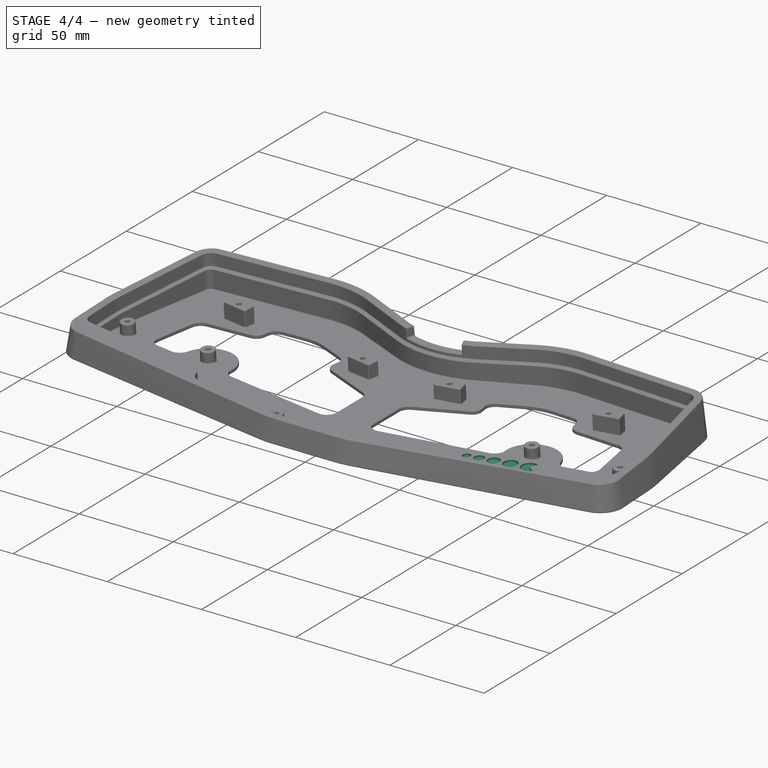
[diagram: stage 4 of 4 — iso view after this stage's code; geometry added in this stage tinted green]
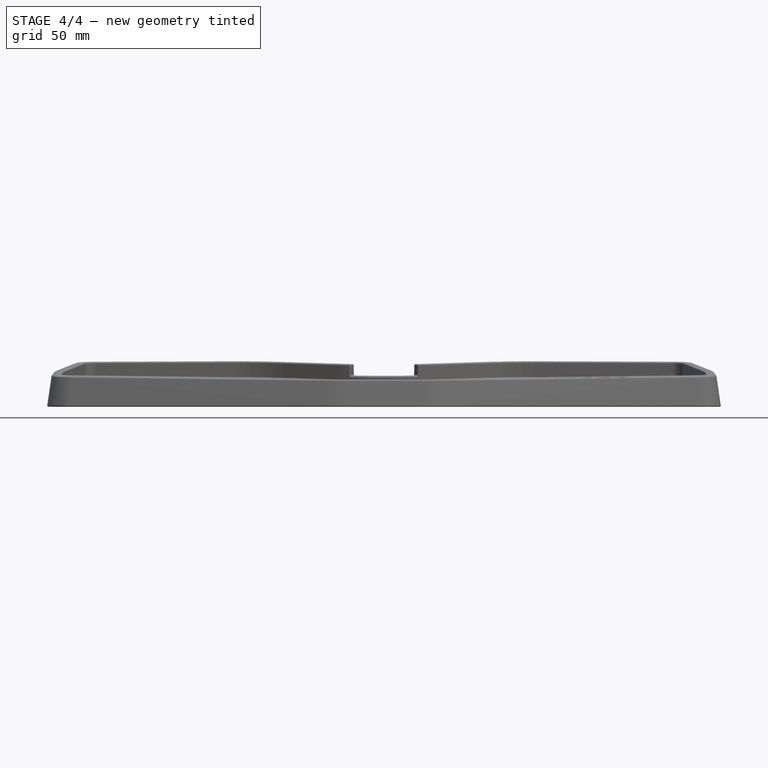
[diagram: stage 4 of 4 — front view after this stage's code; geometry added in this stage tinted green]
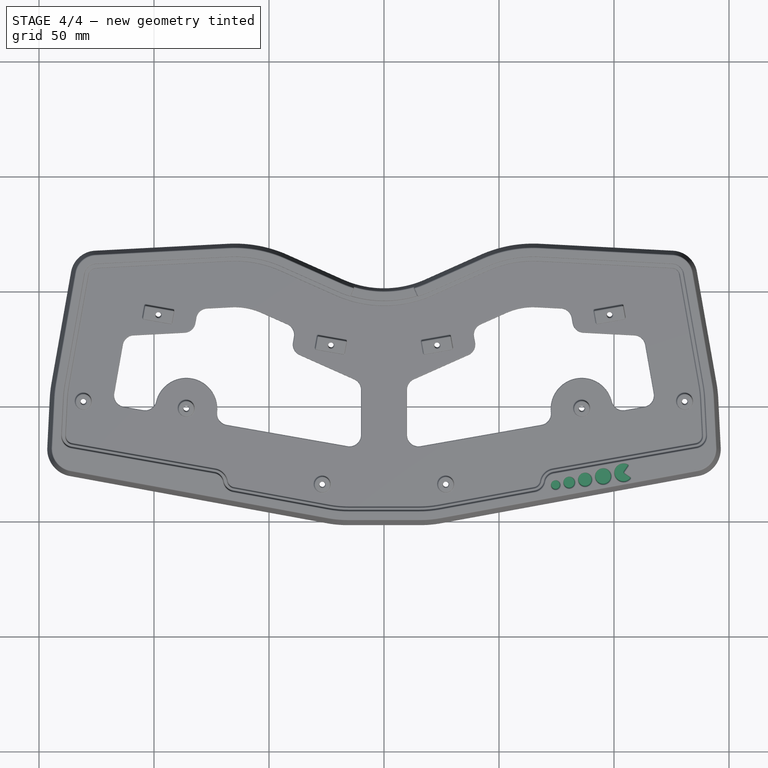
[diagram: stage 4 of 4 — top view after this stage's code; geometry added in this stage tinted green]
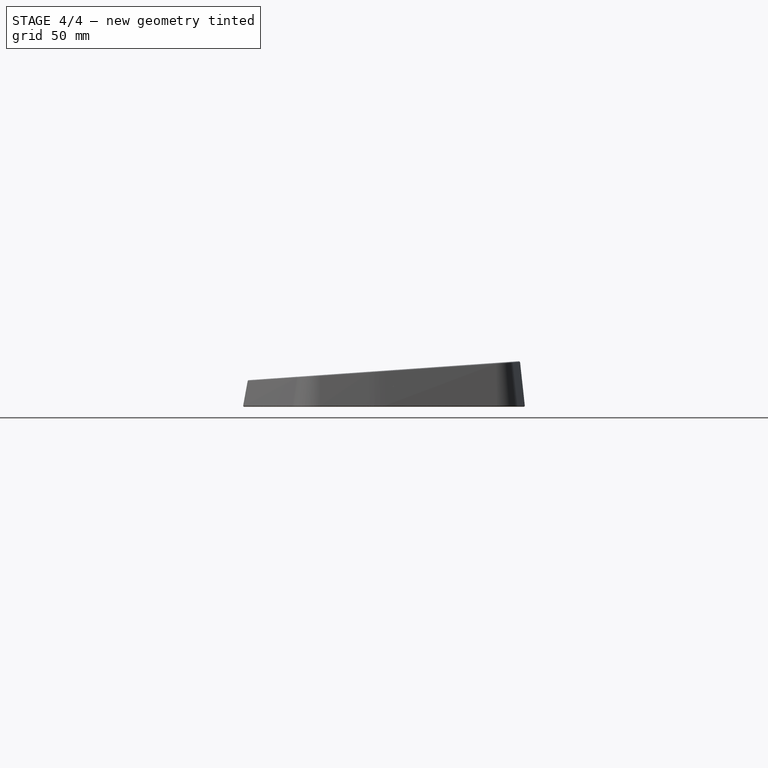
[diagram: stage 4 of 4 — right view after this stage's code; geometry added in this stage tinted green]
FEATURE [Sketcher::SketchObject] Sketch007
  ExternalGeometry = -> [Chamfer]
  FullyConstrained = true
  MapMode = 5
  Placement = pos=(2e-16,-1.0438,14.927) rot=(1,0,0;0.069813rad)
  Support = -> [Chamfer]
  sketch-geometry (9):
    g0: Circle CenterX=74.6123 CenterY=-33.268 CenterZ=0 NormalX=0 NormalY=0 NormalZ=1 AngleXU=0 Radius=2
    g1: Circle CenterX=80.5163 CenterY=-32.1989 CenterZ=0 NormalX=0 NormalY=0 NormalZ=1 AngleXU=0 Radius=2.5
    g2: LineSegment StartX=136.085 StartY=-22.1362 StartZ=0 EndX=49.1428 EndY=-37.8802 EndZ=0
    g3: LineSegment StartX=73.6679 StartY=-28.0523 StartZ=0 EndX=74.6123 EndY=-33.268 EndZ=0
    g4: Circle CenterX=87.4043 CenterY=-30.9516 CenterZ=0 NormalX=0 NormalY=0 NormalZ=1 AngleXU=0 Radius=3
    g5: Circle CenterX=95.2763 CenterY=-29.5261 CenterZ=0 NormalX=0 NormalY=0 NormalZ=1 AngleXU=0 Radius=3.5
    g6: LineSegment StartX=106.411 StartY=-24.6353 StartZ=0 EndX=104.132 EndY=-27.9224 EndZ=0
    g7: LineSegment StartX=104.132 StartY=-27.9224 StartZ=0 EndX=107.419 EndY=-30.2016 EndZ=0
    g8: ArcOfCircle CenterX=104.132 CenterY=-27.9224 CenterZ=0 NormalX=0 NormalY=0 NormalZ=1 AngleXU=0 Radius=4 StartAngle=0.964542 EndAngle=5.67693
  constraints (24):
    c: Symmetric(g-4,g-3,g2)
    c: Symmetric(g-4,g-3,g2)
    c: PointOnObject(g0,g2)
    c: PointOnObject(g1,g2)
    c: Coincident(g3,g-4)
    c: Coincident(g3,g0)
    c: Perpendicular(g3,g2)
    c: Diameter(g0) = 4
    c: Distance(g1,g0) = 6
    c: Diameter(g1) = 5
    c: PointOnObject(g4,g2)
    c: PointOnObject(g5,g2)
    c: Diameter(g4) = 6
    c: Diameter(g5) = 7
    c: Distance(g1,g4) = 7
    c: Distance(g4,g5) = 8
    c: Symmetric(g7,g6,g2)
    c: Coincident(g8,g6)
    c: Coincident(g8,g6)
    c: Coincident(g8,g7)
    c: Coincident(g6,g7)
    c: Distance(g6,g5) = 9
    c: Distance(g6) = 4
    c: Perpendicular(g6,g7)
FEATURE [PartDesign::Pocket] Pocket004
  BaseFeature = -> Chamfer
  Direction = (0,0.0697565,-0.997564)
  Length = 1.5
  Length2 = 5
  Profile = -> Sketch007
  ReferenceAxis = -> Sketch007 [N_Axis]
  Type = 0
FEATURE [PartDesign::Fillet] Fillet
  Base = -> Pocket004 [Edge1,Edge2,Edge3,Edge4,Edge5,Edge6,Edge7,Edge8,Edge9,Edge10,Edge11,Edge12,Edge13,Edge14,Edge15,Edge16,Edge17,Edge18,Edge19,Edge20,Edge21,Edge22,Edge23,Edge24,Edge25,Edge26,Edge27,Edge28,Edge29,Edge30,Edge31,Edge32,Edge33,Edge34,Edge35,Edge36,Edge37,Edge38,Edge39,Edge40,+469 more]
  BaseFeature = -> Pocket004
  Radius = 0.5
  SupportTransform = false
  UseAllEdges = true
FEATURE [PartDesign::Body] Body
  Group = -> [Sketch001,Sketch002,AdditiveLoft,Sketch,Pocket,Sketch003,Pocket001,Sketch004,Pocket002,Sketch005,Hole,Sketch006,Pocket003,Chamfer,Sketch007,Pocket004,Fillet]
  Origin = -> Origin
  Tip = -> Fillet
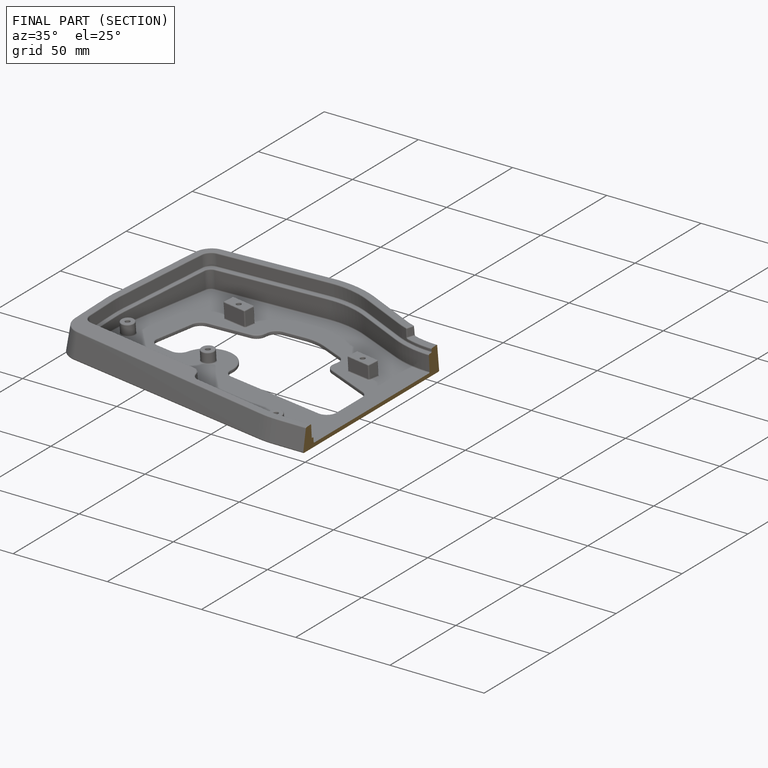
[diagram: finished part — half-section view (interior)]
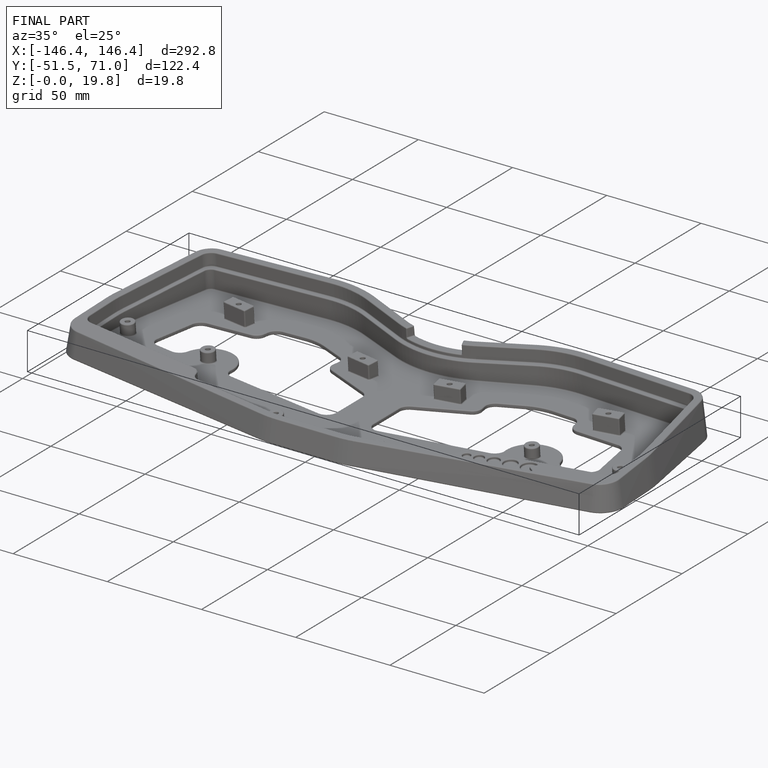
[diagram: finished part — iso view with bounding-box wireframe]
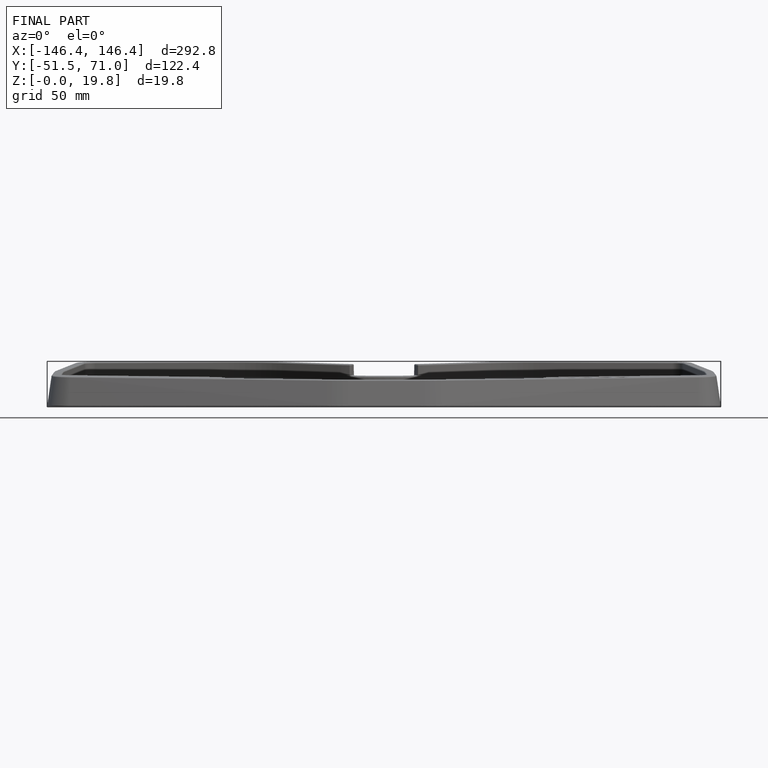
[diagram: finished part — front view with bounding-box wireframe]
